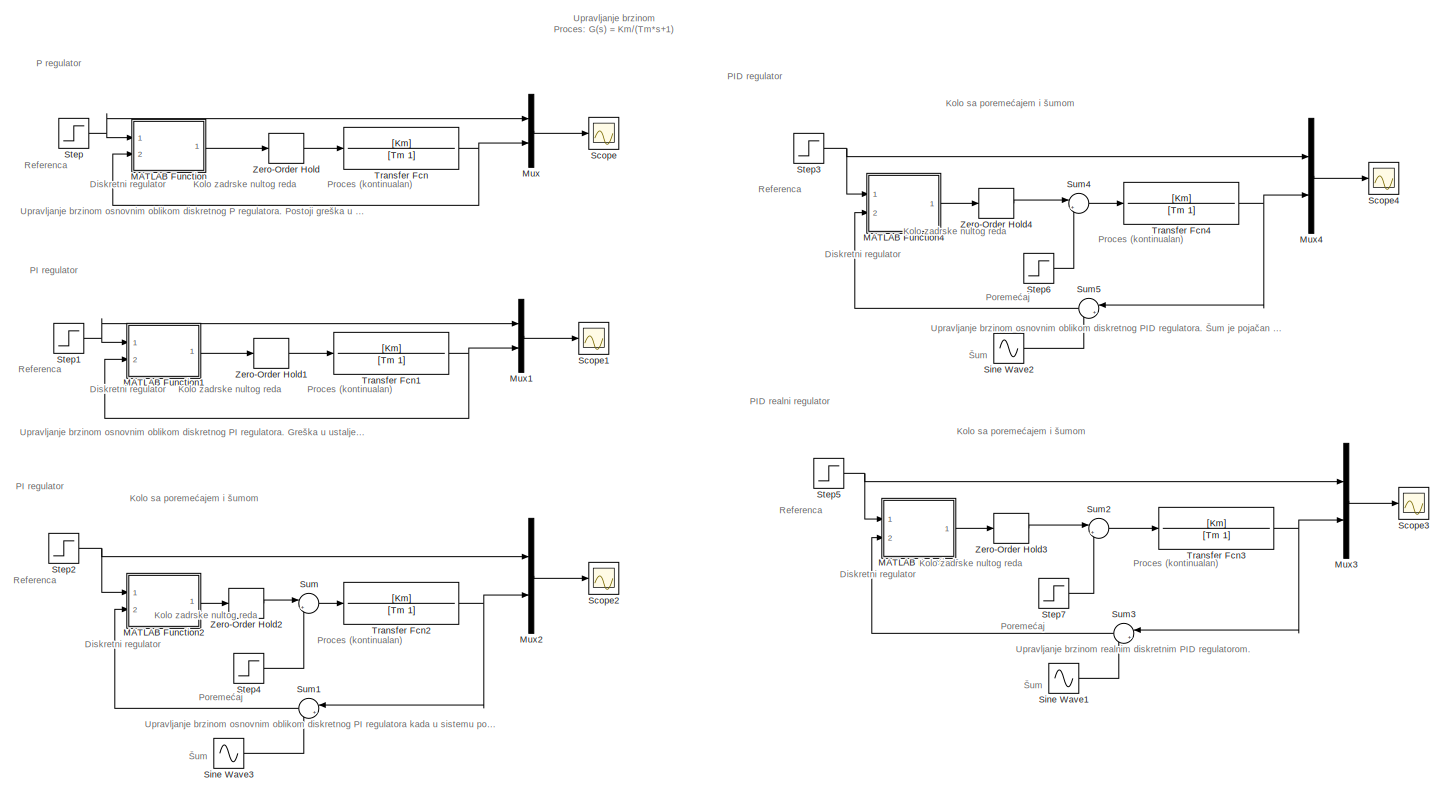
[diagram: root canvas - part 1/1, most of the canvas]
MODEL slx_596c7b1a9196
KIND model
CONFIG AbsTol = auto
CONFIG EnableMultiTasking = off
CONFIG FixedStep = auto
CONFIG MaxStep = auto
CONFIG MinStep = auto
CONFIG RelTol = 1e-3
CONFIG SampleTimeConstraint = Unconstrained
CONFIG Solver = ode3
CONFIG SolverName = ode3
CONFIG StartTime = 0.0
CONFIG StopTime = 100
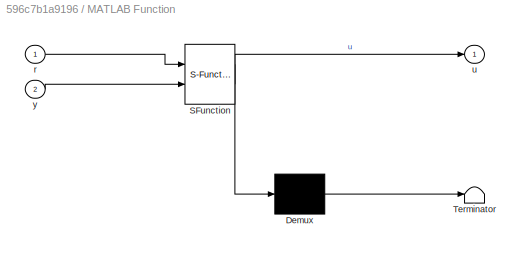
BLOCK [SubSystem] MATLAB Function
  ErrorFcn = Stateflow.Translate.translate
  PermitHierarchicalResolution = ExplicitOnly
  Ports = [2, 1]
  RequestExecContextInheritance = off
  SFBlockType = MATLAB Function
  TreatAsAtomicUnit = on
  Variant = off
BLOCK [Demux] MATLAB Function/ Demux 
  Outputs = 1
  Ports = [1, 1]
BLOCK [S-Function] MATLAB Function/ SFunction 
  EnableBusSupport = on
  FunctionName = sf_sfun
  Parameters = K
  PortCounts = [2 2]
  Ports = [2, 2]
  SFcnIsStateOwnerBlock = off
  SFunctionDeploymentMode = off
  Tag = Stateflow S-Function upravljanjeBrzinom2014a 2
BLOCK [Terminator] MATLAB Function/ Terminator 
BLOCK [Inport] MATLAB Function/r
  IconDisplay = Port number
BLOCK [Outport] MATLAB Function/u
  IconDisplay = Port number
BLOCK [Inport] MATLAB Function/y
  IconDisplay = Port number
  Port = 2
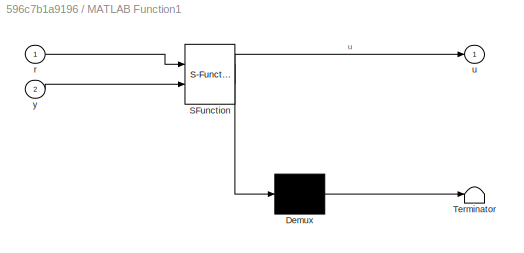
BLOCK [SubSystem] MATLAB Function1
  ErrorFcn = Stateflow.Translate.translate
  PermitHierarchicalResolution = ExplicitOnly
  Ports = [2, 1]
  RequestExecContextInheritance = off
  SFBlockType = MATLAB Function
  TreatAsAtomicUnit = on
  Variant = off
BLOCK [Demux] MATLAB Function1/ Demux 
  Outputs = 1
  Ports = [1, 1]
BLOCK [S-Function] MATLAB Function1/ SFunction 
  EnableBusSupport = on
  FunctionName = sf_sfun
  Parameters = K1,T,Ti1
  PortCounts = [2 2]
  Ports = [2, 2]
  SFcnIsStateOwnerBlock = off
  SFunctionDeploymentMode = off
  Tag = Stateflow S-Function upravljanjeBrzinom2014a 1
BLOCK [Terminator] MATLAB Function1/ Terminator 
BLOCK [Inport] MATLAB Function1/r
  IconDisplay = Port number
BLOCK [Outport] MATLAB Function1/u
  IconDisplay = Port number
BLOCK [Inport] MATLAB Function1/y
  IconDisplay = Port number
  Port = 2
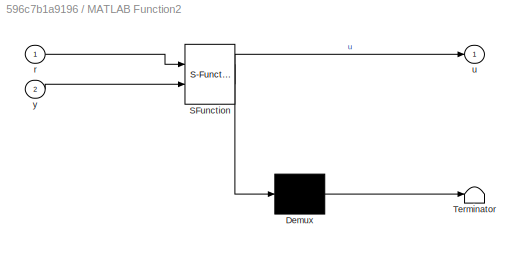
BLOCK [SubSystem] MATLAB Function2
  ErrorFcn = Stateflow.Translate.translate
  PermitHierarchicalResolution = ExplicitOnly
  Ports = [2, 1]
  RequestExecContextInheritance = off
  SFBlockType = MATLAB Function
  TreatAsAtomicUnit = on
  Variant = off
BLOCK [Demux] MATLAB Function2/ Demux 
  Outputs = 1
  Ports = [1, 1]
BLOCK [S-Function] MATLAB Function2/ SFunction 
  EnableBusSupport = on
  FunctionName = sf_sfun
  Parameters = K1,T,Ti1
  PortCounts = [2 2]
  Ports = [2, 2]
  SFcnIsStateOwnerBlock = off
  SFunctionDeploymentMode = off
  Tag = Stateflow S-Function upravljanjeBrzinom2014a 3
BLOCK [Terminator] MATLAB Function2/ Terminator 
BLOCK [Inport] MATLAB Function2/r
  IconDisplay = Port number
BLOCK [Outport] MATLAB Function2/u
  IconDisplay = Port number
BLOCK [Inport] MATLAB Function2/y
  IconDisplay = Port number
  Port = 2
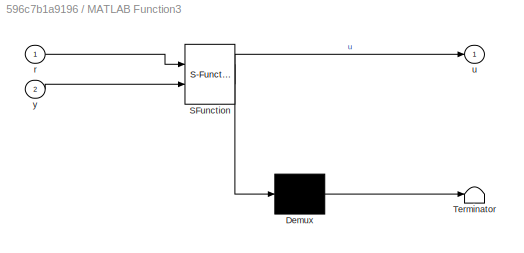
BLOCK [SubSystem] MATLAB Function3
  ErrorFcn = Stateflow.Translate.translate
  PermitHierarchicalResolution = ExplicitOnly
  Ports = [2, 1]
  RequestExecContextInheritance = off
  SFBlockType = MATLAB Function
  TreatAsAtomicUnit = on
  Variant = off
BLOCK [Demux] MATLAB Function3/ Demux 
  Outputs = 1
  Ports = [1, 1]
BLOCK [S-Function] MATLAB Function3/ SFunction 
  EnableBusSupport = on
  FunctionName = sf_sfun
  Parameters = K2,N,T,Td2,Ti2,b
  PortCounts = [2 2]
  Ports = [2, 2]
  SFcnIsStateOwnerBlock = off
  SFunctionDeploymentMode = off
  Tag = Stateflow S-Function upravljanjeBrzinom2014a 4
BLOCK [Terminator] MATLAB Function3/ Terminator 
BLOCK [Inport] MATLAB Function3/r
  IconDisplay = Port number
BLOCK [Outport] MATLAB Function3/u
  IconDisplay = Port number
BLOCK [Inport] MATLAB Function3/y
  IconDisplay = Port number
  Port = 2
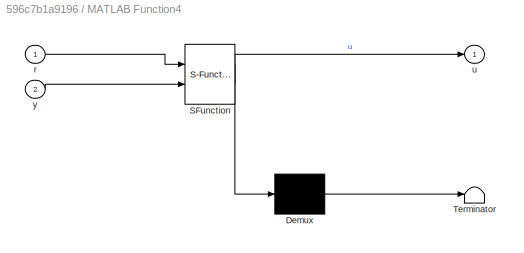
BLOCK [SubSystem] MATLAB Function4
  ErrorFcn = Stateflow.Translate.translate
  PermitHierarchicalResolution = ExplicitOnly
  Ports = [2, 1]
  RequestExecContextInheritance = off
  SFBlockType = MATLAB Function
  TreatAsAtomicUnit = on
  Variant = off
BLOCK [Demux] MATLAB Function4/ Demux 
  Outputs = 1
  Ports = [1, 1]
BLOCK [S-Function] MATLAB Function4/ SFunction 
  EnableBusSupport = on
  FunctionName = sf_sfun
  Parameters = K2,T,Td2,Ti2
  PortCounts = [2 2]
  Ports = [2, 2]
  SFcnIsStateOwnerBlock = off
  SFunctionDeploymentMode = off
  Tag = Stateflow S-Function upravljanjeBrzinom2014a 5
BLOCK [Terminator] MATLAB Function4/ Terminator 
BLOCK [Inport] MATLAB Function4/r
  IconDisplay = Port number
BLOCK [Outport] MATLAB Function4/u
  IconDisplay = Port number
BLOCK [Inport] MATLAB Function4/y
  IconDisplay = Port number
  Port = 2
BLOCK [Mux] Mux
  DisplayOption = bar
  Inputs = 2
  Ports = [2, 1]
BLOCK [Mux] Mux1
  DisplayOption = bar
  Inputs = 2
  Ports = [2, 1]
BLOCK [Mux] Mux2
  DisplayOption = bar
  Inputs = 2
  Ports = [2, 1]
BLOCK [Mux] Mux3
  DisplayOption = bar
  Inputs = 2
  Ports = [2, 1]
BLOCK [Mux] Mux4
  DisplayOption = bar
  Inputs = 2
  Ports = [2, 1]
BLOCK [Scope] Scope
  NumInputPorts = 1
  Ports = [1]
  ScopeSpecificationString = Simulink.scopes.TimeScopeBlockCfg('CurrentConfiguration', extmgr.ConfigurationSet(extmgr.Configuration('Core','General UI',true,'FigureColor',[0.156862745098039 0.156862745098039 0.156862745098039]),extmgr.Configuration('Core','Source UI',true),extmgr.Configuration('Sources','WiredSimulink',true,'DataLoggingSaveFormat','StructureWithTime','DataLoggingDecimation','1','DataLoggingDecimateData',true)...<+2679ch>
BLOCK [Scope] Scope1
  NumInputPorts = 1
  Ports = [1]
  ScopeSpecificationString = Simulink.scopes.TimeScopeBlockCfg('CurrentConfiguration', extmgr.ConfigurationSet(extmgr.Configuration('Core','General UI',true,'FigureColor',[0.156862745098039 0.156862745098039 0.156862745098039]),extmgr.Configuration('Core','Source UI',true),extmgr.Configuration('Sources','WiredSimulink',true,'DataLoggingVariableName','ScopeData1','DataLoggingSaveFormat','StructureWithTime','DataLoggingDecimati...<+2732ch>
BLOCK [Scope] Scope2
  NumInputPorts = 1
  Ports = [1]
  ScopeSpecificationString = Simulink.scopes.TimeScopeBlockCfg('CurrentConfiguration', extmgr.ConfigurationSet(extmgr.Configuration('Core','General UI',true,'FigureColor',[0.156862745098039 0.156862745098039 0.156862745098039]),extmgr.Configuration('Core','Source UI',true),extmgr.Configuration('Sources','WiredSimulink',true,'DataLoggingVariableName','ScopeData1','DataLoggingSaveFormat','StructureWithTime','DataLoggingDecimati...<+2730ch>
BLOCK [Scope] Scope3
  NumInputPorts = 1
  Ports = [1]
  ScopeSpecificationString = Simulink.scopes.TimeScopeBlockCfg('CurrentConfiguration', extmgr.ConfigurationSet(extmgr.Configuration('Core','General UI',true,'FigureColor',[0.156862745098039 0.156862745098039 0.156862745098039]),extmgr.Configuration('Core','Source UI',true),extmgr.Configuration('Sources','WiredSimulink',true,'DataLoggingVariableName','ScopeData1','DataLoggingSaveFormat','StructureWithTime','DataLoggingDecimati...<+2843ch>
BLOCK [Scope] Scope4
  NumInputPorts = 1
  Ports = [1]
  ScopeSpecificationString = Simulink.scopes.TimeScopeBlockCfg('CurrentConfiguration', extmgr.ConfigurationSet(extmgr.Configuration('Core','General UI',true,'FigureColor',[0.156862745098039 0.156862745098039 0.156862745098039]),extmgr.Configuration('Core','Source UI',true),extmgr.Configuration('Sources','WiredSimulink',true,'DataLoggingVariableName','ScopeData1','DataLoggingSaveFormat','StructureWithTime','DataLoggingDecimati...<+2843ch>
BLOCK [Sin] Sine Wave1
  Amplitude = 0.1
  Frequency = 50000
  Ports = [0, 1]
  SampleTime = 0
BLOCK [Sin] Sine Wave2
  Amplitude = 0.1
  Frequency = 50000
  Ports = [0, 1]
  SampleTime = 0
BLOCK [Sin] Sine Wave3
  Amplitude = 0.1
  Frequency = 50000
  Ports = [0, 1]
  SampleTime = 0
BLOCK [Step] Step
  After = 140
  SampleTime = 0
BLOCK [Step] Step1
  After = 140
  SampleTime = 0
BLOCK [Step] Step2
  After = 10
  SampleTime = 0
BLOCK [Step] Step3
  After = 10
  SampleTime = 0
BLOCK [Step] Step4
  SampleTime = 0
  Time = 5
BLOCK [Step] Step5
  After = 10
  SampleTime = 0
BLOCK [Step] Step6
  SampleTime = 0
  Time = 5
BLOCK [Step] Step7
  SampleTime = 0
  Time = 5
BLOCK [Sum] Sum
  IconShape = round
  InputSameDT = off
  Inputs = |++
  OutDataTypeStr = Inherit: Inherit via internal rule
  Ports = [2, 1]
  SaturateOnIntegerOverflow = off
BLOCK [Sum] Sum1
  IconShape = round
  InputSameDT = off
  Inputs = |++
  OutDataTypeStr = Inherit: Inherit via internal rule
  Ports = [2, 1]
  SaturateOnIntegerOverflow = off
BLOCK [Sum] Sum2
  IconShape = round
  InputSameDT = off
  Inputs = |++
  OutDataTypeStr = Inherit: Inherit via internal rule
  Ports = [2, 1]
  SaturateOnIntegerOverflow = off
BLOCK [Sum] Sum3
  IconShape = round
  InputSameDT = off
  Inputs = |++
  OutDataTypeStr = Inherit: Inherit via internal rule
  Ports = [2, 1]
  SaturateOnIntegerOverflow = off
BLOCK [Sum] Sum4
  IconShape = round
  InputSameDT = off
  Inputs = |++
  OutDataTypeStr = Inherit: Inherit via internal rule
  Ports = [2, 1]
  SaturateOnIntegerOverflow = off
BLOCK [Sum] Sum5
  IconShape = round
  InputSameDT = off
  Inputs = |++
  OutDataTypeStr = Inherit: Inherit via internal rule
  Ports = [2, 1]
  SaturateOnIntegerOverflow = off
BLOCK [TransferFcn] Transfer Fcn
  Denominator = [Tm 1]
  Numerator = [Km]
BLOCK [TransferFcn] Transfer Fcn1
  Denominator = [Tm 1]
  Numerator = [Km]
BLOCK [TransferFcn] Transfer Fcn2
  Denominator = [Tm 1]
  Numerator = [Km]
BLOCK [TransferFcn] Transfer Fcn3
  Denominator = [Tm 1]
  Numerator = [Km]
BLOCK [TransferFcn] Transfer Fcn4
  Denominator = [Tm 1]
  Numerator = [Km]
BLOCK [ZeroOrderHold] Zero-Order Hold
  SampleTime = T
BLOCK [ZeroOrderHold] Zero-Order Hold1
  SampleTime = T
BLOCK [ZeroOrderHold] Zero-Order Hold2
  SampleTime = T
BLOCK [ZeroOrderHold] Zero-Order Hold3
  SampleTime = T
BLOCK [ZeroOrderHold] Zero-Order Hold4
  SampleTime = T
ANNOTATION (root): Diskretni regulator
ANNOTATION (root): Kolo zadrske nultog reda
ANNOTATION (root): Poremećaj
ANNOTATION (root): Proces (kontinualan)
ANNOTATION (root): Referenca
ANNOTATION (root): Upravljanje brzinom osnovnim oblikom diskretnog PI regulatora. Greška u ustaljenom stanju je 0.
ANNOTATION (root): Upravljanje brzinom osnovnim oblikom diskretnog P regulatora. Postoji greška u ustaljenom stanju, pa uvodimo I dejstvo.
ANNOTATION (root): Upravljanje brzinom osnovnim oblikom diskretnog PI regulatora kada u sistemu postoje poremećaj i šum.
ANNOTATION (root): Upravljanje brzinom osnovnim oblikom diskretnog PID regulatora. Šum je pojačan (sistem nekad može postati nestabilan), zbog čega je neophodno izvršiti modifikaciju D dejstva.
ANNOTATION (root): Upravljanje brzinom realnim diskretnim PID regulatorom.
ANNOTATION (root): Šum
ANNOTATION (root): Kolo sa poremećajem i šumom
ANNOTATION (root): P regulator
ANNOTATION (root): PI regulator
ANNOTATION (root): PID realni regulator
ANNOTATION (root): PID regulator
ANNOTATION (root): Upravljanje brzinom Proces: G(s) = Km/(Tm*s+1)
LINE MATLAB Function1:1 -> Zero-Order Hold1:1
LINE MATLAB Function2:1 -> Zero-Order Hold2:1
LINE MATLAB Function3:1 -> Zero-Order Hold3:1
LINE MATLAB Function4:1 -> Zero-Order Hold4:1
LINE MATLAB Function:1 -> Zero-Order Hold:1
LINE Mux1:1 -> Scope1:1
LINE Mux2:1 -> Scope2:1
LINE Mux3:1 -> Scope3:1
LINE Mux4:1 -> Scope4:1
LINE Mux:1 -> Scope:1
LINE Sine Wave1:1 -> Sum3:2
LINE Sine Wave2:1 -> Sum5:2
LINE Sine Wave3:1 -> Sum1:2
NET Step1:1 -> MATLAB Function1:1, Mux1:1
NET Step2:1 -> MATLAB Function2:1, Mux2:1
NET Step3:1 -> MATLAB Function4:1, Mux4:1
LINE Step4:1 -> Sum:2
NET Step5:1 -> MATLAB Function3:1, Mux3:1
LINE Step6:1 -> Sum4:2
LINE Step7:1 -> Sum2:2
NET Step:1 -> MATLAB Function:1, Mux:1
LINE Sum1:1 -> MATLAB Function2:2
LINE Sum2:1 -> Transfer Fcn3:1
LINE Sum3:1 -> MATLAB Function3:2
LINE Sum4:1 -> Transfer Fcn4:1
LINE Sum5:1 -> MATLAB Function4:2
LINE Sum:1 -> Transfer Fcn2:1
NET Transfer Fcn1:1 -> MATLAB Function1:2, Mux1:2
NET Transfer Fcn2:1 -> Mux2:2, Sum1:1
NET Transfer Fcn3:1 -> Mux3:2, Sum3:1
NET Transfer Fcn4:1 -> Mux4:2, Sum5:1
NET Transfer Fcn:1 -> MATLAB Function:2, Mux:2
LINE Zero-Order Hold1:1 -> Transfer Fcn1:1
LINE Zero-Order Hold2:1 -> Sum:1
LINE Zero-Order Hold3:1 -> Sum2:1
LINE Zero-Order Hold4:1 -> Sum4:1
LINE Zero-Order Hold:1 -> Transfer Fcn:1
note: NET lines group one-source signal fan-out (src -> all destinations, sorted); 1:1 wires keep LINE
CHART MATLAB Function1 states=1 transitions=1
  STATE_LABEL 'eML_blk_kernel()'
  STATE_LABEL 'SCRIPT:\nfunction u = fcn(r, y, K1, T, Ti1)\n% implementacija osnovnog oblika diskretnog PI regulatora\n% Ulazni parametri su: r - referenca, y - izlaz iz sistema (procesa), K1 -\n% proporcionalno pojacanje, T - perioda odabiranja, Ti1 - vremenska konstantna integraljenja.\n% Izlazni parametar je upravljanje: u = P + I.\n% I dejstvo je diskretizovano diferenciranjem unazad I(kT + T) = I(kT) + (K1*T/Ti1)...<+639ch>'
CHART MATLAB Function states=1 transitions=1
  STATE_LABEL 'eML_blk_kernel()'
  STATE_LABEL 'SCRIPT:\nfunction u = fcn(r, y, K)\n% implementacija osnovnog oblika diskretnog P regulatora\n% Ulazni parametri su: r - referenca, y - izlaz iz sistema (procesa), K -\n% proporcionalno pojacanje.\n% Izlazni parametar je upravljanje: u = P = Ke = K(r-y).\n\nu = K * (r - y);\n\nend\n\n\n'
CHART MATLAB Function2 states=1 transitions=1
  STATE_LABEL 'eML_blk_kernel()'
  STATE_LABEL 'SCRIPT:\nfunction u = fcn(r, y, K1, T, Ti1)\n% implementacija osnovnog oblika diskretnog PI regulatora\n% Ulazni parametri su: r - referenca, y - izlaz iz sistema (procesa), K1 -\n% proporcionalno pojacanje, T - perioda odabiranja, Ti1 - vremenska konstantna integraljenja.\n% Izlazni parametar je upravljanje: u = P + I.\n% I dejstvo je diskretizovano diferenciranjem unazad I(kT + T) = I(kT) + (K1*T/Ti1)...<+640ch>'
CHART MATLAB Function3 states=1 transitions=1
  STATE_LABEL 'eML_blk_kernel()'
  STATE_LABEL 'SCRIPT:\nfunction u = fcn(r, y, K2, T, Ti2, b, Td2, N)\n% implementacija realnog diskretnog PID regulatora\n% Ulazni parametri su: r - referenca, y - izlaz iz sistema (procesa), K2 -\n% proporcionalno pojacanje, T - perioda odabiranja, Ti2 - vremenska\n% konstantna integraljenja, Td2 - vremenska konstanta diferenciranja, \n% N - vremenska konstanta niskopropusnog filtra, b - tezinski faktor.\n% Izlazni p...<+1049ch>'
CHART MATLAB Function4 states=1 transitions=1
  STATE_LABEL 'eML_blk_kernel()'
  STATE_LABEL 'SCRIPT:\nfunction u = fcn(r, y, K2, T, Ti2, Td2)\n% implementacija osnovnog oblika diskretnog PID regulatora\n% Ulazni parametri su: r - referenca, y - izlaz iz sistema (procesa), K2 -\n% proporcionalno pojacanje, T - perioda odabiranja, Ti2 - vremenska\n% konstantna integraljenja, Td2 - vremenska konstanta diferenciranja.\n% Izlazni parametar je upravljanje: u = P + I + D.\n% I dejstvo je diskretizovano...<+829ch>'
